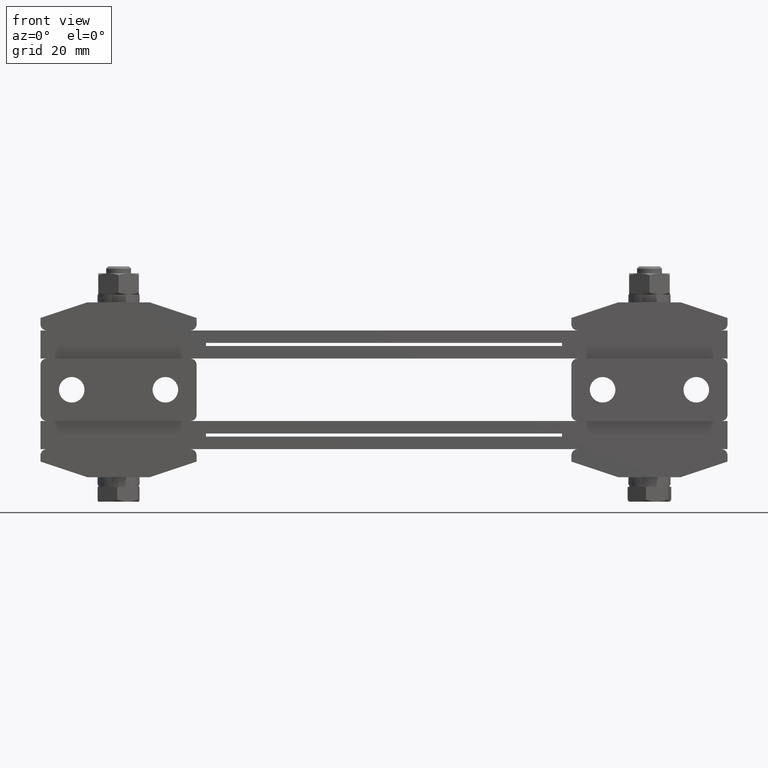
[diagram: clean part render]
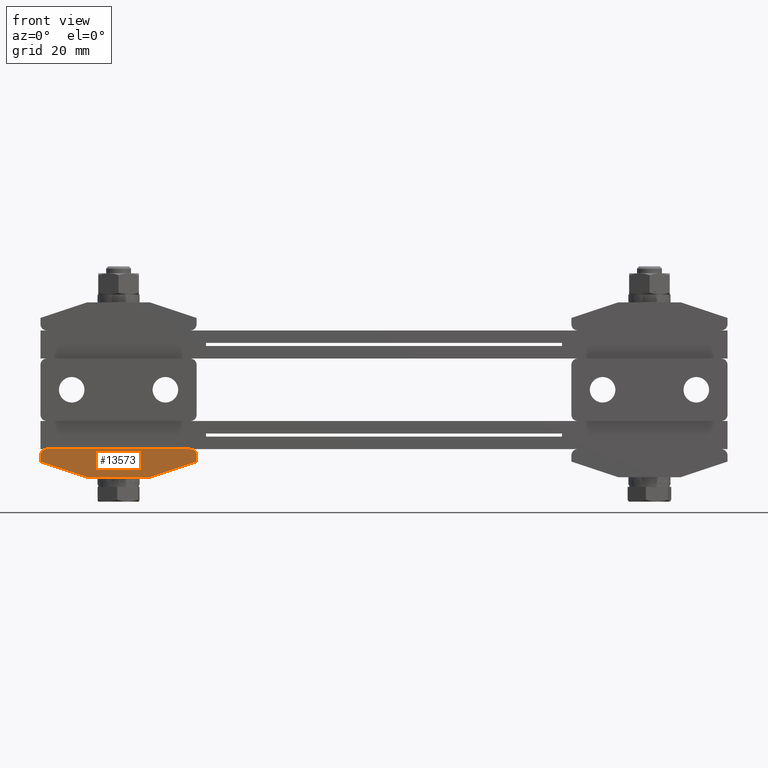
[diagram: same view with one face highlighted and labeled with its STEP entity id]
A machine part, front view. The second image highlights one B-rep face of the part: STEP entity #13573.
In plain terms, the highlighted planar face has unit normal (0, 1, 0).
Its self-contained STEP definition (entity closure, byte-faithful):
#839 = VERTEX_POINT ( 'NONE', #10207 ) ;
#972 = VECTOR ( 'NONE', #22399, 1000.000000000000000 ) ;
#1116 = DIRECTION ( 'NONE',  ( 0.0000000000000000000, 0.0000000000000000000, 1.000000000000000000 ) ) ;
#1935 = CIRCLE ( 'NONE', #10024, 2.000000000000000000 ) ;
#2181 = CARTESIAN_POINT ( 'NONE',  ( -60.00000000000000000, -12.50000000000000000, -9.000000000000000000 ) ) ;
#3033 = CARTESIAN_POINT ( 'NONE',  ( -62.00000000000000000, -12.50000000000000000, -5.000000000000000000 ) ) ;
#3177 = CARTESIAN_POINT ( 'NONE',  ( -62.00000000000000000, -12.50000000000000000, -7.000000000000000000 ) ) ;
#3411 = LINE ( 'NONE', #12462, #21667 ) ;
#3767 = VECTOR ( 'NONE', #19433, 1000.000000000000000 ) ;
#4046 = CARTESIAN_POINT ( 'NONE',  ( -95.00000000000000000, -12.50000000000000000, -14.00000000000000000 ) ) ;
#4180 = CARTESIAN_POINT ( 'NONE',  ( -108.0000000000000000, -12.50000000000000000, -5.000000000000000000 ) ) ;
#4465 = CARTESIAN_POINT ( 'NONE',  ( -60.00000000000000000, -12.50000000000000000, -7.000000000000000000 ) ) ;
#4494 = ORIENTED_EDGE ( 'NONE', *, *, #17183, .T. ) ;
#4763 = EDGE_CURVE ( 'NONE', #18540, #10300, #16695, .T. ) ;
#5056 = EDGE_CURVE ( 'NONE', #16355, #10300, #22251, .T. ) ;
#5467 = CARTESIAN_POINT ( 'NONE',  ( -110.0000000000000000, -12.50000000000000000, -14.00000000000000000 ) ) ;
#5869 = DIRECTION ( 'NONE',  ( 0.9486832980505137700, 0.0000000000000000000, 0.3162277660168380000 ) ) ;
#6061 = EDGE_LOOP ( 'NONE', ( #22185, #17580, #7389, #4494, #10425, #21907, #18085, #11093 ) ) ;
#7389 = ORIENTED_EDGE ( 'NONE', *, *, #12136, .F. ) ;
#7420 = VERTEX_POINT ( 'NONE', #4180 ) ;
#7553 = DIRECTION ( 'NONE',  ( -0.0000000000000000000, -1.000000000000000000, -0.0000000000000000000 ) ) ;
#7732 = CARTESIAN_POINT ( 'NONE',  ( -103.8000000000000000, -12.50000000000000000, -23.59999999999999800 ) ) ;
#8288 = DIRECTION ( 'NONE',  ( 1.000000000000000000, 0.0000000000000000000, 0.0000000000000000000 ) ) ;
#8668 = VERTEX_POINT ( 'NONE', #4046 ) ;
#9203 = FACE_OUTER_BOUND ( 'NONE', #6061, .T. ) ;
#9300 = DIRECTION ( 'NONE',  ( 0.9486832980505137700, 0.0000000000000000000, -0.3162277660168380000 ) ) ;
#10018 = VECTOR ( 'NONE', #9300, 999.9999999999998900 ) ;
#10024 = AXIS2_PLACEMENT_3D ( 'NONE', #21520, #7553, #18116 ) ;
#10207 = CARTESIAN_POINT ( 'NONE',  ( -110.0000000000000000, -12.50000000000000000, -9.000000000000000000 ) ) ;
#10300 = VERTEX_POINT ( 'NONE', #2181 ) ;
#10425 = ORIENTED_EDGE ( 'NONE', *, *, #20897, .T. ) ;
#11093 = ORIENTED_EDGE ( 'NONE', *, *, #5056, .T. ) ;
#11103 = CIRCLE ( 'NONE', #11982, 2.000000000000000000 ) ;
#11350 = VERTEX_POINT ( 'NONE', #12795 ) ;
#11583 = PLANE ( 'NONE',  #14992 ) ;
#11982 = AXIS2_PLACEMENT_3D ( 'NONE', #3177, #18778, #1116 ) ;
#12109 = VERTEX_POINT ( 'NONE', #3033 ) ;
#12136 = EDGE_CURVE ( 'NONE', #7420, #12109, #22604, .T. ) ;
#12462 = CARTESIAN_POINT ( 'NONE',  ( -110.0000000000000000, -12.50000000000000000, -5.000000000000000000 ) ) ;
#12794 = EDGE_CURVE ( 'NONE', #8668, #16355, #19236, .T. ) ;
#12795 = CARTESIAN_POINT ( 'NONE',  ( -110.0000000000000000, -12.50000000000000000, -7.000000000000000000 ) ) ;
#13359 = CARTESIAN_POINT ( 'NONE',  ( -75.00000000000000000, -12.50000000000000000, -14.00000000000000000 ) ) ;
#13573 = ADVANCED_FACE ( 'NONE', ( #9203 ), #11583, .F. ) ;
#14715 = LINE ( 'NONE', #14742, #10018 ) ;
#14742 = CARTESIAN_POINT ( 'NONE',  ( -111.1999999999999900, -12.50000000000000000, -8.599999999999999600 ) ) ;
#14992 = AXIS2_PLACEMENT_3D ( 'NONE', #15384, #18932, #22432 ) ;
#15285 = CARTESIAN_POINT ( 'NONE',  ( -60.00000000000000000, -12.50000000000000000, -5.000000000000000000 ) ) ;
#15384 = CARTESIAN_POINT ( 'NONE',  ( -110.0000000000000000, -12.50000000000000000, -5.000000000000000000 ) ) ;
#16355 = VERTEX_POINT ( 'NONE', #13359 ) ;
#16695 = LINE ( 'NONE', #15285, #972 ) ;
#17183 = EDGE_CURVE ( 'NONE', #7420, #11350, #1935, .T. ) ;
#17515 = VECTOR ( 'NONE', #5869, 999.9999999999998900 ) ;
#17580 = ORIENTED_EDGE ( 'NONE', *, *, #22186, .T. ) ;
#18085 = ORIENTED_EDGE ( 'NONE', *, *, #12794, .T. ) ;
#18116 = DIRECTION ( 'NONE',  ( 0.0000000000000000000, 0.0000000000000000000, 1.000000000000000000 ) ) ;
#18540 = VERTEX_POINT ( 'NONE', #4465 ) ;
#18778 = DIRECTION ( 'NONE',  ( -0.0000000000000000000, -1.000000000000000000, -0.0000000000000000000 ) ) ;
#18932 = DIRECTION ( 'NONE',  ( 0.0000000000000000000, 1.000000000000000000, 0.0000000000000000000 ) ) ;
#19236 = LINE ( 'NONE', #5467, #3767 ) ;
#19433 = DIRECTION ( 'NONE',  ( 1.000000000000000000, 0.0000000000000000000, 0.0000000000000000000 ) ) ;
#19568 = DIRECTION ( 'NONE',  ( 0.0000000000000000000, 0.0000000000000000000, -1.000000000000000000 ) ) ;
#20358 = EDGE_CURVE ( 'NONE', #839, #8668, #14715, .T. ) ;
#20379 = VECTOR ( 'NONE', #8288, 1000.000000000000000 ) ;
#20897 = EDGE_CURVE ( 'NONE', #11350, #839, #3411, .T. ) ;
#21520 = CARTESIAN_POINT ( 'NONE',  ( -108.0000000000000000, -12.50000000000000000, -7.000000000000000000 ) ) ;
#21667 = VECTOR ( 'NONE', #19568, 1000.000000000000000 ) ;
#21907 = ORIENTED_EDGE ( 'NONE', *, *, #20358, .T. ) ;
#22185 = ORIENTED_EDGE ( 'NONE', *, *, #4763, .F. ) ;
#22186 = EDGE_CURVE ( 'NONE', #18540, #12109, #11103, .T. ) ;
#22198 = CARTESIAN_POINT ( 'NONE',  ( -110.0000000000000000, -12.50000000000000000, -5.000000000000000000 ) ) ;
#22251 = LINE ( 'NONE', #7732, #17515 ) ;
#22399 = DIRECTION ( 'NONE',  ( 0.0000000000000000000, 0.0000000000000000000, -1.000000000000000000 ) ) ;
#22432 = DIRECTION ( 'NONE',  ( 0.0000000000000000000, 0.0000000000000000000, 1.000000000000000000 ) ) ;
#22604 = LINE ( 'NONE', #22198, #20379 ) ;